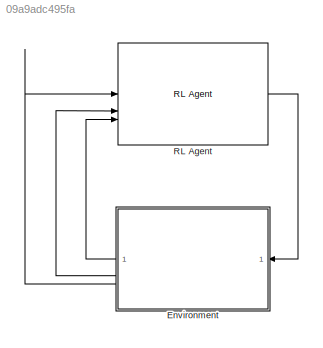
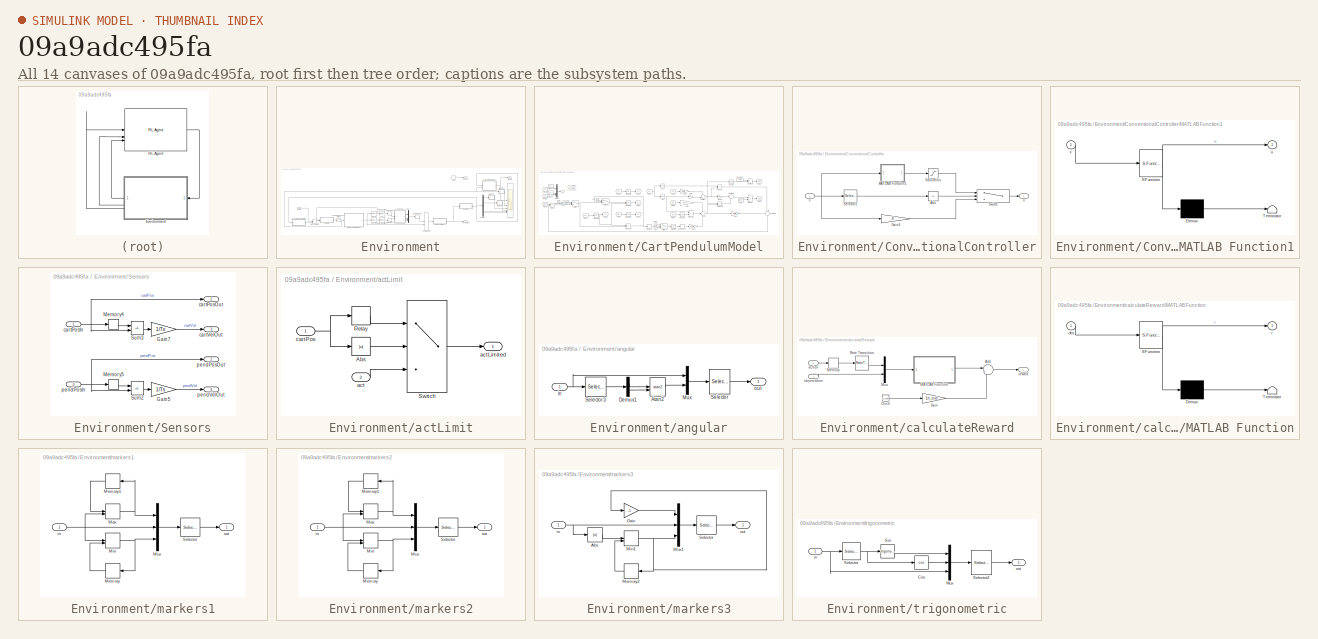
[diagram: thumbnail index - all 14 canvases of the model, root first then tree order]
MODEL slx_09a9adc495fa
KIND model
CONFIG AbsTol = auto
CONFIG EnableMultiTasking = off
CONFIG FixedStep = Ts
CONFIG MaxStep = auto
CONFIG MinStep = auto
CONFIG RelTol = 1e-3
CONFIG SampleTimeConstraint = Unconstrained
CONFIG SolverName = ode5
CONFIG StartTime = 0.0
CONFIG StopTime = t_end
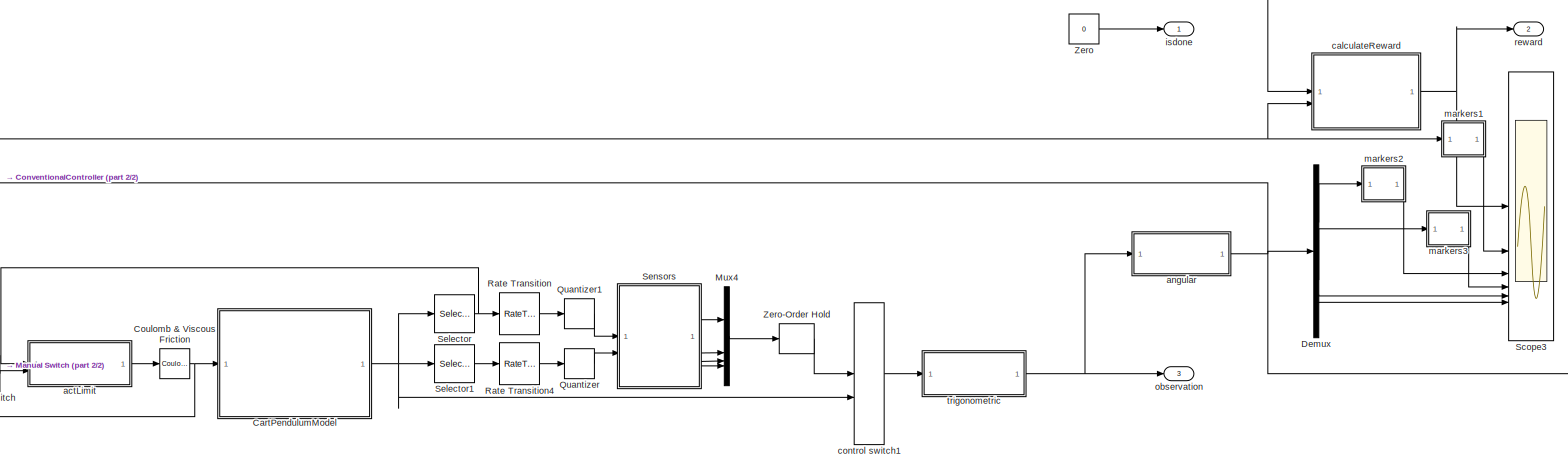
[diagram: Environment - part 1/2, most of the canvas]
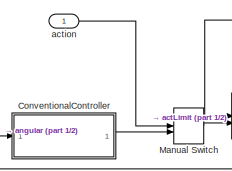
[diagram: Environment - part 2/2, bottom left region]
BLOCK [SubSystem] Environment
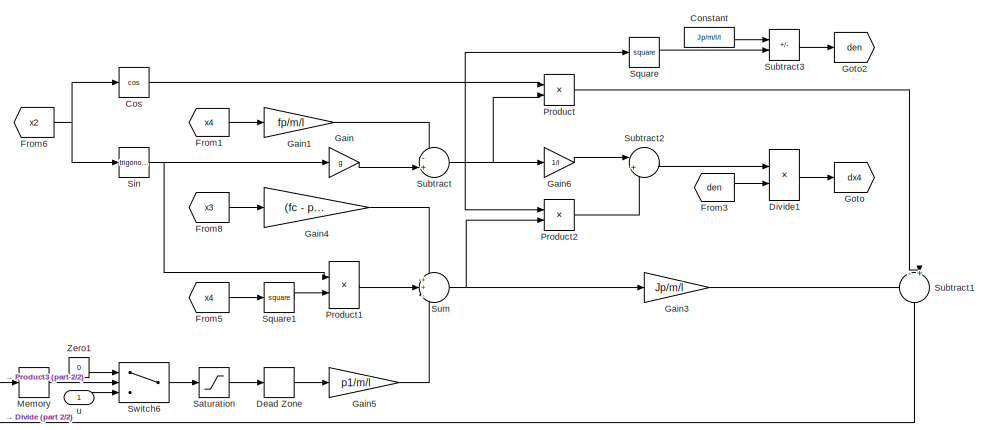
[diagram: Environment/CartPendulumModel - part 1/2, right side, full height]
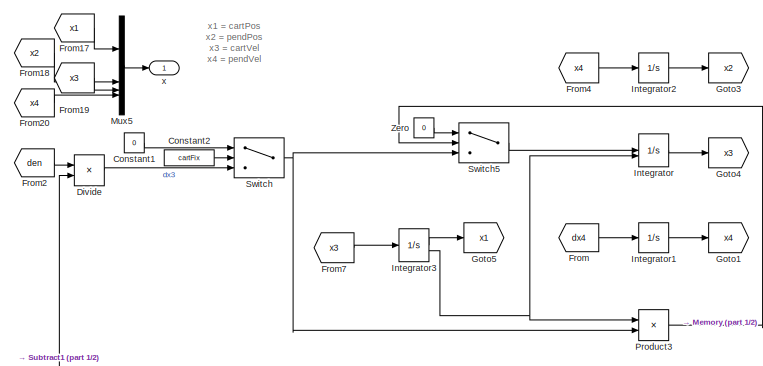
[diagram: Environment/CartPendulumModel - part 2/2, left side, full height]
BLOCK [SubSystem] Environment/CartPendulumModel
BLOCK [Constant] Environment/CartPendulumModel/Constant
  Value = Jp/m/l/l
BLOCK [Constant] Environment/CartPendulumModel/Constant1
  Value = 0
BLOCK [Constant] Environment/CartPendulumModel/Constant2
  Value = cartFix
BLOCK [Trigonometry] Environment/CartPendulumModel/Cos
  Operator = cos
BLOCK [DeadZone] Environment/CartPendulumModel/Dead Zone
  LowerValue = -fs/p1
  UpperValue = fs/p1
BLOCK [Product] Environment/CartPendulumModel/Divide
  Inputs = /*
BLOCK [Product] Environment/CartPendulumModel/Divide1
  Inputs = */
BLOCK [From] Environment/CartPendulumModel/From
  GotoTag = dx4
BLOCK [From] Environment/CartPendulumModel/From1
  GotoTag = x4
BLOCK [From] Environment/CartPendulumModel/From17
  GotoTag = x1
BLOCK [From] Environment/CartPendulumModel/From18
  GotoTag = x2
BLOCK [From] Environment/CartPendulumModel/From19
  GotoTag = x3
BLOCK [From] Environment/CartPendulumModel/From2
  GotoTag = den
BLOCK [From] Environment/CartPendulumModel/From20
  GotoTag = x4
BLOCK [From] Environment/CartPendulumModel/From3
  GotoTag = den
BLOCK [From] Environment/CartPendulumModel/From4
  GotoTag = x4
BLOCK [From] Environment/CartPendulumModel/From5
  GotoTag = x4
BLOCK [From] Environment/CartPendulumModel/From6
  GotoTag = x2
BLOCK [From] Environment/CartPendulumModel/From7
  GotoTag = x3
BLOCK [From] Environment/CartPendulumModel/From8
  GotoTag = x3
BLOCK [Gain] Environment/CartPendulumModel/Gain
  Gain = g
BLOCK [Gain] Environment/CartPendulumModel/Gain1
  Gain = fp/m/l
BLOCK [Gain] Environment/CartPendulumModel/Gain3
  Gain = Jp/m/l
BLOCK [Gain] Environment/CartPendulumModel/Gain4
  Gain = (fc - p2)/m/l
BLOCK [Gain] Environment/CartPendulumModel/Gain5
  Gain = p1/m/l
BLOCK [Gain] Environment/CartPendulumModel/Gain6
  Gain = 1/l
BLOCK [Goto] Environment/CartPendulumModel/Goto
  GotoTag = dx4
BLOCK [Goto] Environment/CartPendulumModel/Goto1
  GotoTag = x4
BLOCK [Goto] Environment/CartPendulumModel/Goto2
  GotoTag = den
BLOCK [Goto] Environment/CartPendulumModel/Goto3
  GotoTag = x2
BLOCK [Goto] Environment/CartPendulumModel/Goto4
  GotoTag = x3
BLOCK [Goto] Environment/CartPendulumModel/Goto5
  GotoTag = x1
BLOCK [Integrator] Environment/CartPendulumModel/Integrator
  ExternalReset = either
  InitialCondition = x0(3)
BLOCK [Integrator] Environment/CartPendulumModel/Integrator1
  InitialCondition = x0(4)
BLOCK [Integrator] Environment/CartPendulumModel/Integrator2
  InitialCondition = x0(2)
BLOCK [Integrator] Environment/CartPendulumModel/Integrator3
  InitialCondition = x0(1)
  LimitOutput = on
  LowerSaturationLimit = -0.9
  ShowSaturationPort = on
  UpperSaturationLimit = 0.9
BLOCK [Memory] Environment/CartPendulumModel/Memory
BLOCK [Mux] Environment/CartPendulumModel/Mux5
  DisplayOption = bar
BLOCK [Product] Environment/CartPendulumModel/Product
BLOCK [Product] Environment/CartPendulumModel/Product1
BLOCK [Product] Environment/CartPendulumModel/Product2
BLOCK [Product] Environment/CartPendulumModel/Product3
BLOCK [Saturate] Environment/CartPendulumModel/Saturation
BLOCK [Trigonometry] Environment/CartPendulumModel/Sin
BLOCK [Math] Environment/CartPendulumModel/Square
  Operator = square
BLOCK [Math] Environment/CartPendulumModel/Square1
  Operator = square
BLOCK [Sum] Environment/CartPendulumModel/Subtract
  Inputs = -+|
BLOCK [Sum] Environment/CartPendulumModel/Subtract1
  Inputs = -+|
  NameLocation = left
BLOCK [Sum] Environment/CartPendulumModel/Subtract2
  Inputs = |+-
BLOCK [Sum] Environment/CartPendulumModel/Subtract3
  IconShape = rectangular
  Inputs = +-
BLOCK [Sum] Environment/CartPendulumModel/Sum
  Inputs = ++-
BLOCK [Switch] Environment/CartPendulumModel/Switch
  Criteria = u2 > Threshold
  InputSameDT = off
  SaturateOnIntegerOverflow = off
BLOCK [Switch] Environment/CartPendulumModel/Switch5
  Criteria = u2 > Threshold
  InputSameDT = off
  SaturateOnIntegerOverflow = off
BLOCK [Switch] Environment/CartPendulumModel/Switch6
  Criteria = u2 > Threshold
  InputSameDT = off
  SaturateOnIntegerOverflow = off
BLOCK [Constant] Environment/CartPendulumModel/Zero
  OutDataTypeStr = Inherit: Inherit via back propagation
  Value = 0
BLOCK [Constant] Environment/CartPendulumModel/Zero1
  OutDataTypeStr = Inherit: Inherit via back propagation
  Value = 0
BLOCK [Inport] Environment/CartPendulumModel/u
BLOCK [Outport] Environment/CartPendulumModel/x
  PortDimensions = 4
BLOCK [SubSystem] Environment/ConventionalController
  Commented = on
  NameLocation = top
BLOCK [Abs] Environment/ConventionalController/Abs
  SaturateOnIntegerOverflow = off
BLOCK [Gain] Environment/ConventionalController/Gain4
  Gain = -K
  Multiplication = Matrix(K*u) (u vector)
BLOCK [SubSystem] Environment/ConventionalController/MATLAB Function1
  ErrorFcn = Stateflow.Translate.translate
  LibrarySourceBlock = simulink/User-Defined\nFunctions/MATLAB Function
  PermitHierarchicalResolution = ExplicitOnly
  SFBlockType = MATLAB Function
  TreatAsAtomicUnit = on
BLOCK [Demux] Environment/ConventionalController/MATLAB Function1/ Demux 
  Outputs = 1
BLOCK [S-Function] Environment/ConventionalController/MATLAB Function1/ SFunction 
  EnableBusSupport = on
  FunctionName = sf_sfun
  Parameters = Jp,g,lpo,lpwo,mps,mpw
  PortCounts = [1 2]
  SFcnIsStateOwnerBlock = off
  SFunctionDeploymentMode = off
  Tag = Stateflow S-Function 5
BLOCK [Terminator] Environment/ConventionalController/MATLAB Function1/ Terminator 
BLOCK [Outport] Environment/ConventionalController/MATLAB Function1/u
BLOCK [Inport] Environment/ConventionalController/MATLAB Function1/x
BLOCK [Saturate] Environment/ConventionalController/Saturation
  LowerLimit = -0.4
  UpperLimit = 0.4
BLOCK [Selector] Environment/ConventionalController/Selector2
  IndexOptions = Index vector (dialog)
  Indices = [2]
  InputPortWidth = 4
  OutputSizes = 1
BLOCK [Switch] Environment/ConventionalController/Switch
  Criteria = u2 > Threshold
  InputSameDT = off
  SaturateOnIntegerOverflow = off
  Threshold = 0.5
BLOCK [Outport] Environment/ConventionalController/u
BLOCK [Inport] Environment/ConventionalController/x
BLOCK [Reference] Environment/Coulomb & Viscous Friction  REF=simulink/Discontinuities/Coulomb &
Viscous Friction
  Commented = through
  SourceBlock = simulink/Discontinuities/Coulomb &\nViscous Friction
  SourceType = Coulombic and Viscous Friction
BLOCK [Demux] Environment/Demux
BLOCK [ManualSwitch] Environment/Manual Switch
BLOCK [Mux] Environment/Mux4
  DisplayOption = bar
BLOCK [Quantizer] Environment/Quantizer
  QuantizationInterval = 2*pi /4096
BLOCK [Quantizer] Environment/Quantizer1
  QuantizationInterval = 1 /17381
BLOCK [RateTransition] Environment/Rate Transition
  InitialCondition = x0(1)
  OutPortSampleTime = Ts
BLOCK [RateTransition] Environment/Rate Transition4
  InitialCondition = x0(2)
  OutPortSampleTime = Ts
BLOCK [Scope] Environment/Scope3
  Floating = off
  NumInputPorts = 6
  ScopeSpecificationString = Simulink.scopes.TimeScopeBlockCfg('CurrentConfiguration', extmgr.ConfigurationSet(extmgr.Configuration('Core','General UI',true,'FigureColor',[1 1 1]),extmgr.Configuration('Core','Source UI',true),extmgr.Configuration('Sources','WiredSimulink',true,'SampleTime','Ts','DataLogging',true,'DataLoggingSaveFormat','StructureWithTime'),extmgr.Configuration('Visuals','Time Domain',true,'SerializedDisplays...<+10678ch>
BLOCK [Selector] Environment/Selector
  IndexOptions = Index vector (dialog)
  Indices = [1]
  InputPortWidth = 4
  OutputSizes = 1
BLOCK [Selector] Environment/Selector1
  IndexOptions = Index vector (dialog)
  Indices = [2]
  InputPortWidth = 4
  OutputSizes = 1
BLOCK [SubSystem] Environment/Sensors
BLOCK [Gain] Environment/Sensors/Gain5
  Gain = 1/Ts
  OutDataTypeStr = Inherit: Same as input
  ParamDataTypeStr = Inherit: Same as input
  SaturateOnIntegerOverflow = on
BLOCK [Gain] Environment/Sensors/Gain7
  Gain = 1/Ts
  OutDataTypeStr = Inherit: Same as input
  ParamDataTypeStr = Inherit: Same as input
  SaturateOnIntegerOverflow = on
BLOCK [Memory] Environment/Sensors/Memory4
  InheritSampleTime = on
  InitialCondition = x0(1)
BLOCK [Memory] Environment/Sensors/Memory5
  InheritSampleTime = on
  InitialCondition = x0(2)
BLOCK [Sum] Environment/Sensors/Sum2
  IconShape = rectangular
  InputSameDT = on
  Inputs = -+
  NameLocation = top
  OutDataTypeStr = Inherit: Same as first input
  SaturateOnIntegerOverflow = on
BLOCK [Sum] Environment/Sensors/Sum3
  IconShape = rectangular
  InputSameDT = on
  Inputs = -+
  NameLocation = top
  OutDataTypeStr = Inherit: Same as first input
  SaturateOnIntegerOverflow = on
BLOCK [Inport] Environment/Sensors/cartPosIn
  NameLocation = top
BLOCK [Outport] Environment/Sensors/cartPosOut
  InitialOutput = 0
BLOCK [Outport] Environment/Sensors/cartVelOut
  InitialOutput = 0
  Port = 3
BLOCK [Inport] Environment/Sensors/pendPosIn
  NameLocation = top
  Port = 2
BLOCK [Outport] Environment/Sensors/pendPosOut
  InitialOutput = 0
  Port = 2
BLOCK [Outport] Environment/Sensors/pendVelOut
  InitialOutput = 0
  Port = 4
BLOCK [Constant] Environment/Zero
  OutDataTypeStr = Inherit: Inherit via back propagation
  Value = 0
BLOCK [ZeroOrderHold] Environment/Zero-Order Hold
  SampleTime = Ts
BLOCK [SubSystem] Environment/actLimit
BLOCK [Abs] Environment/actLimit/Abs
  SaturateOnIntegerOverflow = off
BLOCK [Relay] Environment/actLimit/Relay
  OffOutputValue = 0.1
  OffSwitchValue = 0
  OnOutputValue = -0.1
  OnSwitchValue = 0
BLOCK [Switch] Environment/actLimit/Switch
  InputSameDT = off
  SaturateOnIntegerOverflow = off
  Threshold = 0.9
BLOCK [Inport] Environment/actLimit/act
  Port = 2
BLOCK [Outport] Environment/actLimit/actLimited
BLOCK [Inport] Environment/actLimit/cartPos
BLOCK [Inport] Environment/action
BLOCK [SubSystem] Environment/angular
BLOCK [Trigonometry] Environment/angular/Atan2
  Operator = atan2
BLOCK [Demux] Environment/angular/Demux1
  Outputs = 2
BLOCK [Mux] Environment/angular/Mux
  DisplayOption = bar
  Inputs = 2
BLOCK [Selector] Environment/angular/Selector
  IndexOptions = Index vector (dialog)
  Indices = [1 6 4 5]
  InputPortWidth = 6
  OutputSizes = 1
BLOCK [Selector] Environment/angular/Selector3
  IndexOptions = Index vector (dialog)
  Indices = [2 3]
  InputPortWidth = 5
  OutputSizes = 1
BLOCK [Inport] Environment/angular/in
BLOCK [Outport] Environment/angular/out
BLOCK [SubSystem] Environment/calculateReward
  NameLocation = top
BLOCK [Sum] Environment/calculateReward/Add
  Inputs = |++
BLOCK [Clock] Environment/calculateReward/Clock
BLOCK [Gain] Environment/calculateReward/Gain
  Gain = 1/t_end
BLOCK [SubSystem] Environment/calculateReward/MATLAB Function
  ErrorFcn = Stateflow.Translate.translate
  LibrarySourceBlock = simulink/User-Defined\nFunctions/MATLAB Function
  PermitHierarchicalResolution = ExplicitOnly
  SFBlockType = MATLAB Function
  TreatAsAtomicUnit = on
BLOCK [Demux] Environment/calculateReward/MATLAB Function/ Demux 
  Outputs = 1
BLOCK [S-Function] Environment/calculateReward/MATLAB Function/ SFunction 
  EnableBusSupport = on
  FunctionName = sf_sfun
  Parameters = Jp,g,lpo,lpwo,mps,mpw
  PortCounts = [1 2]
  SFcnIsStateOwnerBlock = off
  SFunctionDeploymentMode = off
  Tag = Stateflow S-Function 4
BLOCK [Terminator] Environment/calculateReward/MATLAB Function/ Terminator 
BLOCK [Inport] Environment/calculateReward/MATLAB Function/obs
BLOCK [Outport] Environment/calculateReward/MATLAB Function/r
BLOCK [Memory] Environment/calculateReward/Memory
BLOCK [Mux] Environment/calculateReward/Mux
  DisplayOption = bar
  Inputs = 2
BLOCK [RateTransition] Environment/calculateReward/Rate Transition
BLOCK [Inport] Environment/calculateReward/action
  Port = 2
BLOCK [Inport] Environment/calculateReward/observation
BLOCK [Outport] Environment/calculateReward/reward
BLOCK [ManualSwitch] Environment/control switch1
  CurrentSetting = 0
BLOCK [Outport] Environment/isdone
BLOCK [SubSystem] Environment/markers1
BLOCK [MinMax] Environment/markers1/Max
  Function = max
  Inputs = 2
BLOCK [Memory] Environment/markers1/Memory
BLOCK [Memory] Environment/markers1/Memory1
BLOCK [MinMax] Environment/markers1/Min
  Inputs = 2
BLOCK [Mux] Environment/markers1/Mux
  DisplayOption = bar
  Inputs = 3
BLOCK [Selector] Environment/markers1/Selector
  IndexOptions = Index vector (dialog)
  Indices = [1 3 2]
  InputPortWidth = 3
  OutputSizes = 1
BLOCK [Inport] Environment/markers1/in
BLOCK [Outport] Environment/markers1/out
BLOCK [SubSystem] Environment/markers2
BLOCK [MinMax] Environment/markers2/Max
  Function = max
  Inputs = 2
BLOCK [Memory] Environment/markers2/Memory
  InitialCondition = x0(1)
BLOCK [Memory] Environment/markers2/Memory1
  InitialCondition = x0(1)
BLOCK [MinMax] Environment/markers2/Min
  Inputs = 2
BLOCK [Mux] Environment/markers2/Mux
  DisplayOption = bar
  Inputs = 3
BLOCK [Selector] Environment/markers2/Selector
  IndexOptions = Index vector (dialog)
  Indices = [1 3 2]
  InputPortWidth = 3
  OutputSizes = 1
BLOCK [Inport] Environment/markers2/in
BLOCK [Outport] Environment/markers2/out
BLOCK [SubSystem] Environment/markers3
BLOCK [Abs] Environment/markers3/Abs
  SaturateOnIntegerOverflow = off
BLOCK [Gain] Environment/markers3/Gain
  Gain = -1
BLOCK [Memory] Environment/markers3/Memory2
  InitialCondition = x0(2)
BLOCK [MinMax] Environment/markers3/Min1
  Inputs = 2
BLOCK [Mux] Environment/markers3/Mux1
  DisplayOption = bar
  Inputs = 3
BLOCK [Selector] Environment/markers3/Selector
  IndexOptions = Index vector (dialog)
  Indices = [1 3 2]
  InputPortWidth = 3
  OutputSizes = 1
BLOCK [Inport] Environment/markers3/in
BLOCK [Outport] Environment/markers3/out
BLOCK [Outport] Environment/observation
  Port = 3
BLOCK [Outport] Environment/reward
  Port = 2
BLOCK [SubSystem] Environment/trigonometric
BLOCK [Trigonometry] Environment/trigonometric/Cos
  Operator = cos
BLOCK [Mux] Environment/trigonometric/Mux
  DisplayOption = bar
  Inputs = 3
BLOCK [Selector] Environment/trigonometric/Selector
  IndexOptions = Index vector (dialog)
  Indices = 2
  InputPortWidth = 4
  OutputSizes = 1
BLOCK [Selector] Environment/trigonometric/Selector2
  IndexOptions = Index vector (dialog)
  Indices = [3 1 2 5 6]
  InputPortWidth = 6
  OutputSizes = 1
BLOCK [Trigonometry] Environment/trigonometric/Sin
BLOCK [Inport] Environment/trigonometric/in
BLOCK [Outport] Environment/trigonometric/out
BLOCK [Reference] RL Agent  REF=rllib/RL Agent
  SourceBlock = rllib/RL Agent
  SourceType = RL Agent
ANNOTATION Environment/CartPendulumModel: x1 = cartPos x2 = pendPos x3 = cartVel x4 = pendVel
LINE Environment/CartPendulumModel/Constant1:1 -> Environment/CartPendulumModel/Switch:1
LINE Environment/CartPendulumModel/Constant2:1 -> Environment/CartPendulumModel/Switch:2
LINE Environment/CartPendulumModel/Constant:1 -> Environment/CartPendulumModel/Subtract3:1
NET Environment/CartPendulumModel/Cos:1 -> Environment/CartPendulumModel/Product2:1, Environment/CartPendulumModel/Product:1, Environment/CartPendulumModel/Square:1
LINE Environment/CartPendulumModel/Dead Zone:1 -> Environment/CartPendulumModel/Gain5:1
LINE Environment/CartPendulumModel/Divide1:1 -> Environment/CartPendulumModel/Goto:1
LINE Environment/CartPendulumModel/Divide:1 -> Environment/CartPendulumModel/Switch:3
LINE Environment/CartPendulumModel/From17:1 -> Environment/CartPendulumModel/Mux5:1
LINE Environment/CartPendulumModel/From18:1 -> Environment/CartPendulumModel/Mux5:2
LINE Environment/CartPendulumModel/From19:1 -> Environment/CartPendulumModel/Mux5:3
LINE Environment/CartPendulumModel/From1:1 -> Environment/CartPendulumModel/Gain1:1
LINE Environment/CartPendulumModel/From20:1 -> Environment/CartPendulumModel/Mux5:4
LINE Environment/CartPendulumModel/From2:1 -> Environment/CartPendulumModel/Divide:1
LINE Environment/CartPendulumModel/From3:1 -> Environment/CartPendulumModel/Divide1:2
LINE Environment/CartPendulumModel/From4:1 -> Environment/CartPendulumModel/Integrator2:1
LINE Environment/CartPendulumModel/From5:1 -> Environment/CartPendulumModel/Square1:1
NET Environment/CartPendulumModel/From6:1 -> Environment/CartPendulumModel/Cos:1, Environment/CartPendulumModel/Sin:1
LINE Environment/CartPendulumModel/From7:1 -> Environment/CartPendulumModel/Integrator3:1
LINE Environment/CartPendulumModel/From8:1 -> Environment/CartPendulumModel/Gain4:1
LINE Environment/CartPendulumModel/From:1 -> Environment/CartPendulumModel/Integrator1:1
LINE Environment/CartPendulumModel/Gain1:1 -> Environment/CartPendulumModel/Subtract:1
LINE Environment/CartPendulumModel/Gain3:1 -> Environment/CartPendulumModel/Subtract1:1
LINE Environment/CartPendulumModel/Gain4:1 -> Environment/CartPendulumModel/Sum:1
LINE Environment/CartPendulumModel/Gain5:1 -> Environment/CartPendulumModel/Sum:3
LINE Environment/CartPendulumModel/Gain6:1 -> Environment/CartPendulumModel/Subtract2:1
LINE Environment/CartPendulumModel/Gain:1 -> Environment/CartPendulumModel/Subtract:2
LINE Environment/CartPendulumModel/Integrator1:1 -> Environment/CartPendulumModel/Goto1:1
LINE Environment/CartPendulumModel/Integrator2:1 -> Environment/CartPendulumModel/Goto3:1
LINE Environment/CartPendulumModel/Integrator3:1 -> Environment/CartPendulumModel/Goto5:1
NET Environment/CartPendulumModel/Integrator3:2 -> Environment/CartPendulumModel/Integrator:2, Environment/CartPendulumModel/Product3:1
LINE Environment/CartPendulumModel/Integrator:1 -> Environment/CartPendulumModel/Goto4:1
LINE Environment/CartPendulumModel/Memory:1 -> Environment/CartPendulumModel/Switch6:2
LINE Environment/CartPendulumModel/Mux5:1 -> Environment/CartPendulumModel/x:1
LINE Environment/CartPendulumModel/Product1:1 -> Environment/CartPendulumModel/Sum:2
LINE Environment/CartPendulumModel/Product2:1 -> Environment/CartPendulumModel/Subtract2:2
NET Environment/CartPendulumModel/Product3:1 -> Environment/CartPendulumModel/Memory:1, Environment/CartPendulumModel/Switch5:2
LINE Environment/CartPendulumModel/Product:1 -> Environment/CartPendulumModel/Subtract1:2
LINE Environment/CartPendulumModel/Saturation:1 -> Environment/CartPendulumModel/Dead Zone:1
NET Environment/CartPendulumModel/Sin:1 -> Environment/CartPendulumModel/Gain:1, Environment/CartPendulumModel/Product1:1
LINE Environment/CartPendulumModel/Square1:1 -> Environment/CartPendulumModel/Product1:2
LINE Environment/CartPendulumModel/Square:1 -> Environment/CartPendulumModel/Subtract3:2
LINE Environment/CartPendulumModel/Subtract1:1 -> Environment/CartPendulumModel/Divide:2
LINE Environment/CartPendulumModel/Subtract2:1 -> Environment/CartPendulumModel/Divide1:1
LINE Environment/CartPendulumModel/Subtract3:1 -> Environment/CartPendulumModel/Goto2:1
NET Environment/CartPendulumModel/Subtract:1 -> Environment/CartPendulumModel/Gain6:1, Environment/CartPendulumModel/Product:2
NET Environment/CartPendulumModel/Sum:1 -> Environment/CartPendulumModel/Gain3:1, Environment/CartPendulumModel/Product2:2
LINE Environment/CartPendulumModel/Switch5:1 -> Environment/CartPendulumModel/Integrator:1
LINE Environment/CartPendulumModel/Switch6:1 -> Environment/CartPendulumModel/Saturation:1
NET Environment/CartPendulumModel/Switch:1 -> Environment/CartPendulumModel/Product3:2, Environment/CartPendulumModel/Switch5:3
LINE Environment/CartPendulumModel/Zero1:1 -> Environment/CartPendulumModel/Switch6:1
LINE Environment/CartPendulumModel/Zero:1 -> Environment/CartPendulumModel/Switch5:1
LINE Environment/CartPendulumModel/u:1 -> Environment/CartPendulumModel/Switch6:3
NET Environment/CartPendulumModel:1 -> Environment/Selector1:1, Environment/Selector:1, Environment/control switch1:2
LINE Environment/ConventionalController/Abs:1 -> Environment/ConventionalController/Switch:2
LINE Environment/ConventionalController/Gain4:1 -> Environment/ConventionalController/Switch:3
LINE Environment/ConventionalController/MATLAB Function1:1 -> Environment/ConventionalController/Saturation:1
LINE Environment/ConventionalController/Saturation:1 -> Environment/ConventionalController/Switch:1
LINE Environment/ConventionalController/Selector2:1 -> Environment/ConventionalController/Abs:1
LINE Environment/ConventionalController/Switch:1 -> Environment/ConventionalController/u:1
NET Environment/ConventionalController/x:1 -> Environment/ConventionalController/Gain4:1, Environment/ConventionalController/MATLAB Function1:1, Environment/ConventionalController/Selector2:1
LINE Environment/ConventionalController:1 -> Environment/Manual Switch:2
NET Environment/Coulomb & Viscous Friction:1 -> Environment/CartPendulumModel:1, Environment/calculateReward:2, Environment/markers1:1
LINE Environment/Demux:1 -> Environment/markers2:1
LINE Environment/Demux:2 -> Environment/markers3:1
LINE Environment/Demux:3 -> Environment/Scope3:5
LINE Environment/Demux:4 -> Environment/Scope3:6
LINE Environment/Manual Switch:1 -> Environment/actLimit:2
LINE Environment/Mux4:1 -> Environment/Zero-Order Hold:1
LINE Environment/Quantizer1:1 -> Environment/Sensors:1
LINE Environment/Quantizer:1 -> Environment/Sensors:2
LINE Environment/Rate Transition4:1 -> Environment/Quantizer:1
LINE Environment/Rate Transition:1 -> Environment/Quantizer1:1
LINE Environment/Selector1:1 -> Environment/Rate Transition4:1
NET Environment/Selector:1 -> Environment/Rate Transition:1, Environment/actLimit:1
LINE Environment/Sensors/Gain5:1 -> Environment/Sensors/pendVelOut:1
LINE Environment/Sensors/Gain7:1 -> Environment/Sensors/cartVelOut:1
LINE Environment/Sensors/Memory4:1 -> Environment/Sensors/Sum3:1
LINE Environment/Sensors/Memory5:1 -> Environment/Sensors/Sum2:1
LINE Environment/Sensors/Sum2:1 -> Environment/Sensors/Gain5:1
LINE Environment/Sensors/Sum3:1 -> Environment/Sensors/Gain7:1
NET Environment/Sensors/cartPosIn:1 -> Environment/Sensors/Memory4:1, Environment/Sensors/Sum3:2, Environment/Sensors/cartPosOut:1
NET Environment/Sensors/pendPosIn:1 -> Environment/Sensors/Memory5:1, Environment/Sensors/Sum2:2, Environment/Sensors/pendPosOut:1
LINE Environment/Sensors:1 -> Environment/Mux4:1
LINE Environment/Sensors:2 -> Environment/Mux4:2
LINE Environment/Sensors:3 -> Environment/Mux4:3
LINE Environment/Sensors:4 -> Environment/Mux4:4
LINE Environment/Zero-Order Hold:1 -> Environment/control switch1:1
LINE Environment/Zero:1 -> Environment/isdone:1
LINE Environment/actLimit/Abs:1 -> Environment/actLimit/Switch:2
LINE Environment/actLimit/Relay:1 -> Environment/actLimit/Switch:1
LINE Environment/actLimit/Switch:1 -> Environment/actLimit/actLimited:1
LINE Environment/actLimit/act:1 -> Environment/actLimit/Switch:3
NET Environment/actLimit/cartPos:1 -> Environment/actLimit/Abs:1, Environment/actLimit/Relay:1
LINE Environment/actLimit:1 -> Environment/Coulomb & Viscous Friction:1
LINE Environment/action:1 -> Environment/Manual Switch:1
LINE Environment/angular/Atan2:1 -> Environment/angular/Mux:2
LINE Environment/angular/Demux1:1 -> Environment/angular/Atan2:1
LINE Environment/angular/Demux1:2 -> Environment/angular/Atan2:2
LINE Environment/angular/Mux:1 -> Environment/angular/Selector:1
LINE Environment/angular/Selector3:1 -> Environment/angular/Demux1:1
LINE Environment/angular/Selector:1 -> Environment/angular/out:1
NET Environment/angular/in:1 -> Environment/angular/Mux:1, Environment/angular/Selector3:1
NET Environment/angular:1 -> Environment/ConventionalController:1, Environment/Demux:1, Environment/calculateReward:1
LINE Environment/calculateReward/Add:1 -> Environment/calculateReward/reward:1
LINE Environment/calculateReward/Clock:1 -> Environment/calculateReward/Gain:1
LINE Environment/calculateReward/Gain:1 -> Environment/calculateReward/Add:2
LINE Environment/calculateReward/MATLAB Function:1 -> Environment/calculateReward/Add:1
LINE Environment/calculateReward/Memory:1 -> Environment/calculateReward/Rate Transition:1
LINE Environment/calculateReward/Mux:1 -> Environment/calculateReward/MATLAB Function:1
LINE Environment/calculateReward/Rate Transition:1 -> Environment/calculateReward/Mux:1
LINE Environment/calculateReward/action:1 -> Environment/calculateReward/Memory:1
LINE Environment/calculateReward/observation:1 -> Environment/calculateReward/Mux:2
NET Environment/calculateReward:1 -> Environment/Scope3:1, Environment/reward:1
LINE Environment/control switch1:1 -> Environment/trigonometric:1
NET Environment/markers1/Max:1 -> Environment/markers1/Memory1:1, Environment/markers1/Mux:1
LINE Environment/markers1/Memory1:1 -> Environment/markers1/Max:1
LINE Environment/markers1/Memory:1 -> Environment/markers1/Min:2
NET Environment/markers1/Min:1 -> Environment/markers1/Memory:1, Environment/markers1/Mux:3
LINE Environment/markers1/Mux:1 -> Environment/markers1/Selector:1
LINE Environment/markers1/Selector:1 -> Environment/markers1/out:1
NET Environment/markers1/in:1 -> Environment/markers1/Max:2, Environment/markers1/Min:1, Environment/markers1/Mux:2
LINE Environment/markers1:1 -> Environment/Scope3:2
NET Environment/markers2/Max:1 -> Environment/markers2/Memory1:1, Environment/markers2/Mux:1
LINE Environment/markers2/Memory1:1 -> Environment/markers2/Max:1
LINE Environment/markers2/Memory:1 -> Environment/markers2/Min:2
NET Environment/markers2/Min:1 -> Environment/markers2/Memory:1, Environment/markers2/Mux:3
LINE Environment/markers2/Mux:1 -> Environment/markers2/Selector:1
LINE Environment/markers2/Selector:1 -> Environment/markers2/out:1
NET Environment/markers2/in:1 -> Environment/markers2/Max:2, Environment/markers2/Min:1, Environment/markers2/Mux:2
LINE Environment/markers2:1 -> Environment/Scope3:3
LINE Environment/markers3/Abs:1 -> Environment/markers3/Min1:1
LINE Environment/markers3/Gain:1 -> Environment/markers3/Mux1:1
LINE Environment/markers3/Memory2:1 -> Environment/markers3/Min1:2
NET Environment/markers3/Min1:1 -> Environment/markers3/Gain:1, Environment/markers3/Memory2:1, Environment/markers3/Mux1:3
LINE Environment/markers3/Mux1:1 -> Environment/markers3/Selector:1
LINE Environment/markers3/Selector:1 -> Environment/markers3/out:1
NET Environment/markers3/in:1 -> Environment/markers3/Abs:1, Environment/markers3/Mux1:2
LINE Environment/markers3:1 -> Environment/Scope3:4
LINE Environment/trigonometric/Cos:1 -> Environment/trigonometric/Mux:2
LINE Environment/trigonometric/Mux:1 -> Environment/trigonometric/Selector2:1
LINE Environment/trigonometric/Selector2:1 -> Environment/trigonometric/out:1
NET Environment/trigonometric/Selector:1 -> Environment/trigonometric/Cos:1, Environment/trigonometric/Sin:1
LINE Environment/trigonometric/Sin:1 -> Environment/trigonometric/Mux:1
NET Environment/trigonometric/in:1 -> Environment/trigonometric/Mux:3, Environment/trigonometric/Selector:1
NET Environment/trigonometric:1 -> Environment/angular:1, Environment/observation:1
LINE Environment:1 -> RL Agent:3
LINE Environment:2 -> RL Agent:2
LINE Environment:3 -> RL Agent:1
LINE RL Agent:1 -> Environment:1
note: NET lines group one-source signal fan-out (src -> all destinations, sorted); 1:1 wires keep LINE
CHART Environment/calculateReward/MATLAB Function states=1 transitions=1
  STATE_LABEL 'eML_blk_kernel()'
  STATE_LABEL 'SCRIPT:\nfunction r = CalculateReward(obs, mpw, mps, lpwo, lpo, g, Jp)\n    act = obs(1);\n    cartPos = obs(2);\n    pendPos = obs(3);\n    pendVel = obs(5);\n\n    ZeroReward = @(val) exp(-abs(val));\n\n    r = 0;\n    Ep = (mpw*lpwo + mps*lpo)*g*(cos(pendPos) + 1);\n    Ek = (Jp*pendVel^2)/2;\n    Em = Ep + Ek;\n    Ep0 = 2*g*(mpw*lpwo + mps*lpo);\n\n    % swing-up & balancing\n    r = r + 10*ZeroReward(Em - E...<+542ch>'
CHART Environment/ConventionalController/MATLAB Function1 states=1 transitions=1
  STATE_LABEL 'eML_blk_kernel()'
  STATE_LABEL 'SCRIPT:\nfunction u = swingUp(x, mpw, mps, lpwo, lpo, g, Jp)\n    pendPos = x(2);\n    pendVel = x(4);\n    Ep = (mpw*lpwo + mps*lpo)*g*(cos(pendPos) + 1);\n    Ek = (Jp*pendVel^2)/2;\n    Em = Ep + Ek;\n    Ep0 = 2*g*(mpw*lpwo + mps*lpo);\n    if (Em < Ep0)\n        u = sign(pendVel*cos(pendPos));\n    else\n        u = 0;\n    end\nend'
CHART  states=0 transitions=0
CHART  states=0 transitions=0
